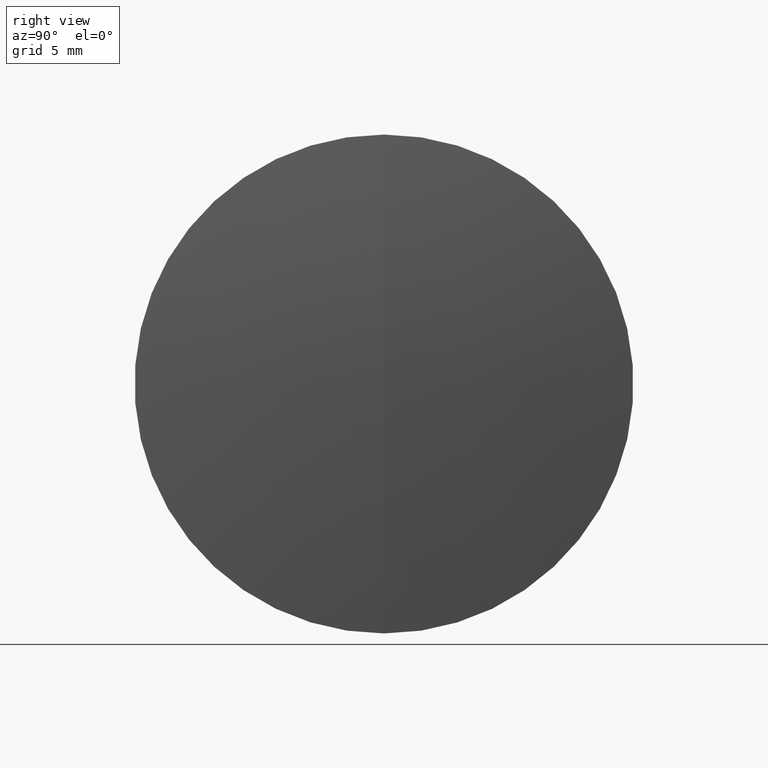
[diagram: clean part render]
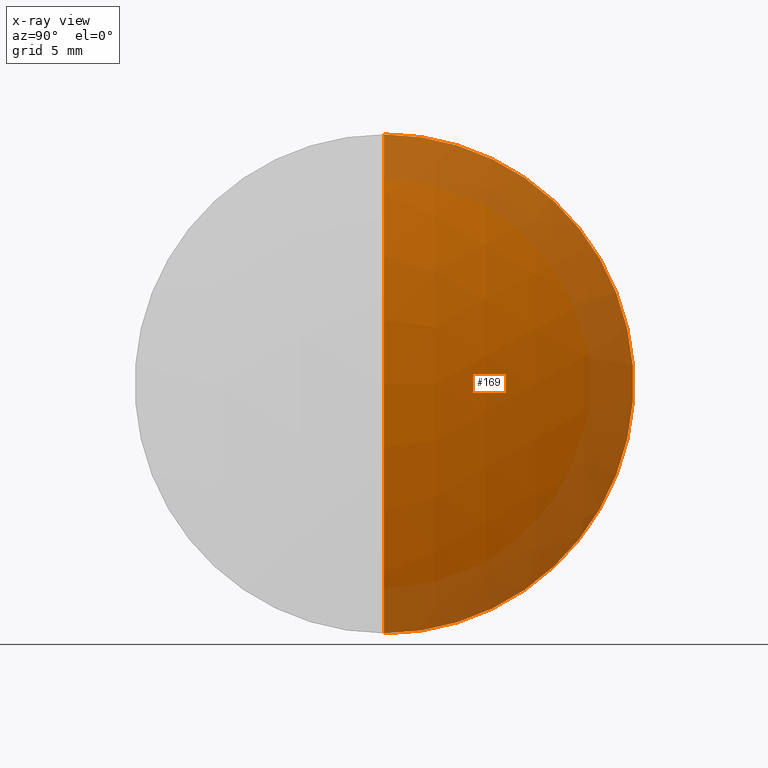
[diagram: x-ray — body ghosted, one internal face saturated and labeled with its STEP entity id]
A machine part, right view, then the same camera in x-ray: the body is ghosted and one INTERNAL B-rep face — a face not visible from any outside direction — is saturated and labeled: STEP entity #169.
In plain terms, the highlighted spherical surface has radius 35.5 mm.
Its self-contained STEP definition (entity closure, byte-faithful):
#6 = DIRECTION ( 'NONE',  ( 0.0000000000000000000, -1.224646799147353000E-016, 1.000000000000000000 ) ) ;
#12 = DIRECTION ( 'NONE',  ( 0.0000000000000000000, 0.0000000000000000000, -1.000000000000000000 ) ) ;
#23 = DIRECTION ( 'NONE',  ( 0.0000000000000000000, 0.0000000000000000000, 1.000000000000000000 ) ) ;
#32 = DIRECTION ( 'NONE',  ( -0.0000000000000000000, 1.000000000000000000, 1.224646799147353200E-016 ) ) ;
#48 = VERTEX_POINT ( 'NONE', #133 ) ;
#59 = AXIS2_PLACEMENT_3D ( 'NONE', #339, #306, #23 ) ;
#71 = CARTESIAN_POINT ( 'NONE',  ( 211.0958458084194300, 0.0000000000000000000, -3.185954776904472300E-015 ) ) ;
#74 = VERTEX_POINT ( 'NONE', #188 ) ;
#118 = EDGE_CURVE ( 'NONE', #343, #74, #238, .T. ) ;
#119 = FACE_OUTER_BOUND ( 'NONE', #276, .T. ) ;
#120 = ORIENTED_EDGE ( 'NONE', *, *, #118, .F. ) ;
#133 = CARTESIAN_POINT ( 'NONE',  ( 246.5958458084194300, 0.0000000000000000000, -1.012206708417919900E-015 ) ) ;
#145 = CARTESIAN_POINT ( 'NONE',  ( 244.2464114144539700, 0.0000000000000000000, 12.69999999999999600 ) ) ;
#146 = AXIS2_PLACEMENT_3D ( 'NONE', #71, #32, #6 ) ;
#157 = EDGE_CURVE ( 'NONE', #48, #74, #191, .T. ) ;
#166 = SPHERICAL_SURFACE ( 'NONE', #59, 35.50000000000001400 ) ;
#169 = ADVANCED_FACE ( 'NONE', ( #119 ), #166, .T. ) ;
#181 = ORIENTED_EDGE ( 'NONE', *, *, #234, .F. ) ;
#182 = DIRECTION ( 'NONE',  ( 0.0000000000000000000, -1.000000000000000000, 0.0000000000000000000 ) ) ;
#188 = CARTESIAN_POINT ( 'NONE',  ( 244.2464114144539700, 1.555301434917138000E-015, -12.69999999999999600 ) ) ;
#191 = CIRCLE ( 'NONE', #146, 35.50000000000001400 ) ;
#192 = ORIENTED_EDGE ( 'NONE', *, *, #157, .T. ) ;
#199 = CIRCLE ( 'NONE', #258, 35.50000000000001400 ) ;
#213 = CARTESIAN_POINT ( 'NONE',  ( 211.0958458084194300, 0.0000000000000000000, -3.185954776904472300E-015 ) ) ;
#234 = EDGE_CURVE ( 'NONE', #48, #343, #199, .T. ) ;
#238 = CIRCLE ( 'NONE', #321, 12.69999999999999600 ) ;
#258 = AXIS2_PLACEMENT_3D ( 'NONE', #213, #182, #12 ) ;
#276 = EDGE_LOOP ( 'NONE', ( #181, #192, #120 ) ) ;
#306 = DIRECTION ( 'NONE',  ( 0.0000000000000000000, 1.000000000000000000, 0.0000000000000000000 ) ) ;
#320 = CARTESIAN_POINT ( 'NONE',  ( 244.2464114144539700, 0.0000000000000000000, 0.0000000000000000000 ) ) ;
#321 = AXIS2_PLACEMENT_3D ( 'NONE', #320, #329, #330 ) ;
#329 = DIRECTION ( 'NONE',  ( -1.000000000000000000, -0.0000000000000000000, -0.0000000000000000000 ) ) ;
#330 = DIRECTION ( 'NONE',  ( 0.0000000000000000000, 0.0000000000000000000, 1.000000000000000000 ) ) ;
#339 = CARTESIAN_POINT ( 'NONE',  ( 211.0958458084194300, 0.0000000000000000000, -3.185954776904472300E-015 ) ) ;
#343 = VERTEX_POINT ( 'NONE', #145 ) ;